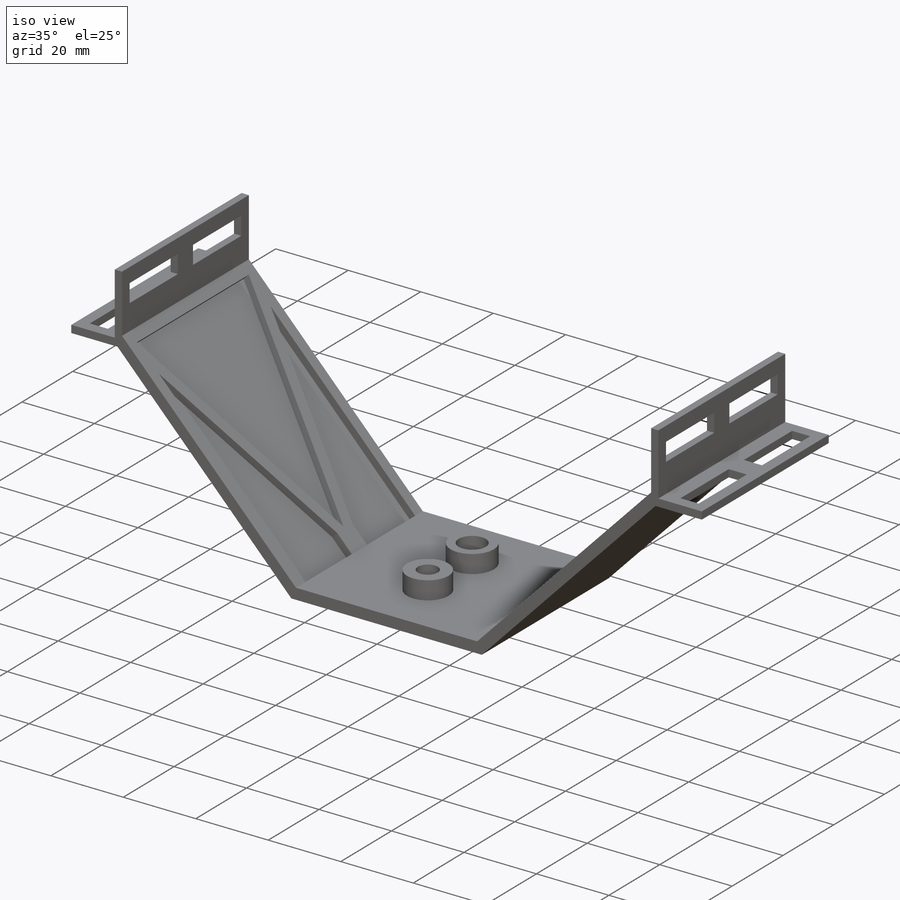
[diagram: iso view]
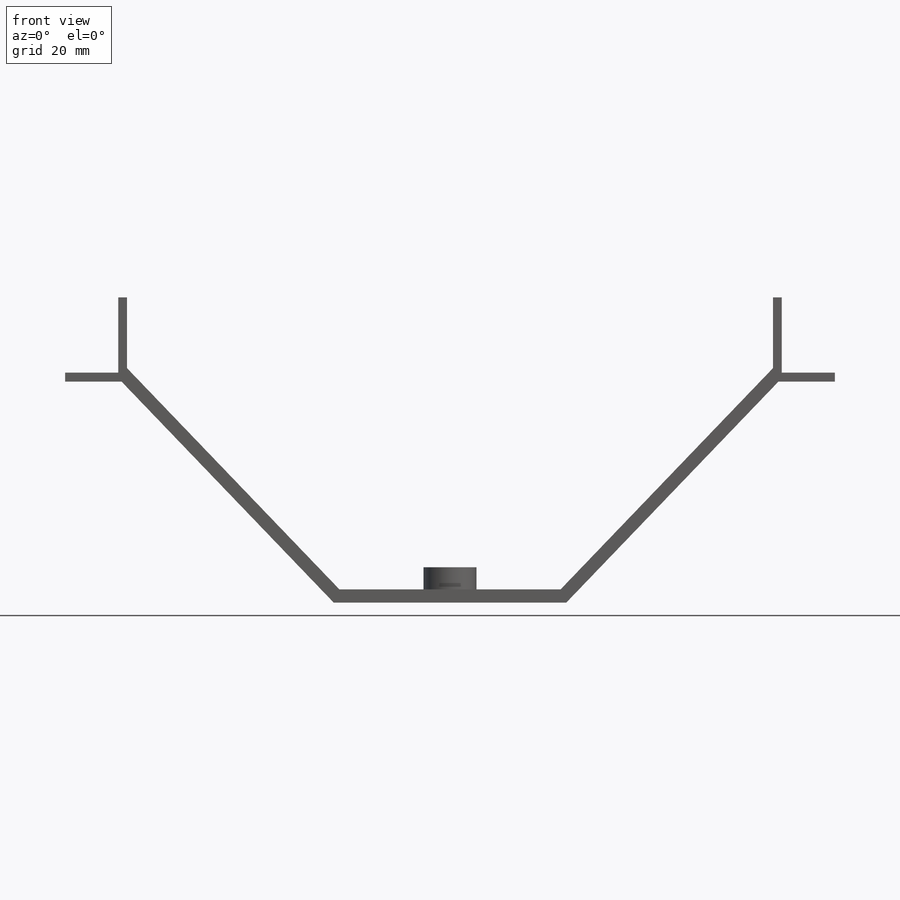
[diagram: front view]
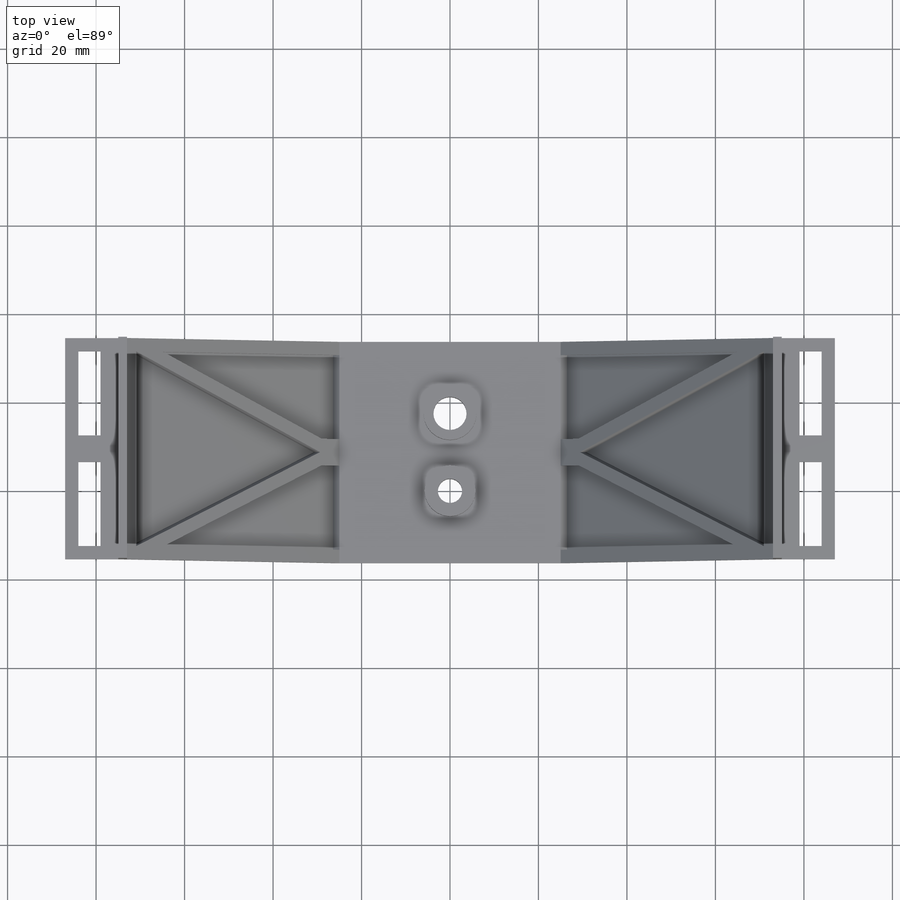
[diagram: top view]
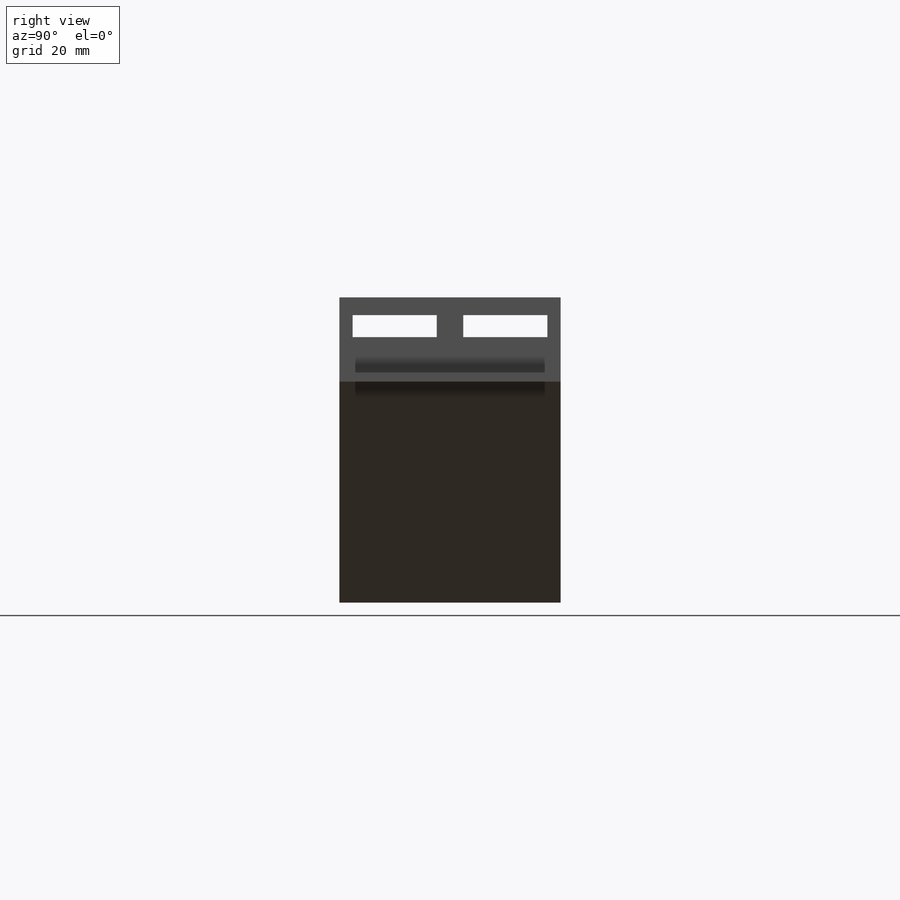
[diagram: right view]
SOLIDWORKS PART (.sldprt)
format: sldprt  version: not decoded by parser v0  size: 423,936 bytes
history: native  units: mm
features: sketch x12, extrude x7, cut_extrude x5, mirror x3, material x1, plane x1 (+13 scaffold rows collapsed)
feature tree (42):
  scaffold x13  (default folders/planes/origin — collapsed)
  material  "Material <not specified>"
  sketch  "Sketch1"  dims[D1=5.5mm D2=7.5mm D3=17.5mm D4=50.0mm D5=50.0mm D6=25.0mm D7=25.0mm]
  extrude  "Boss-Extrude1"  Depth=3mm
  sketch  "Sketch2"  dims[c1.D1=50.0mm c1.D2=2.0mm c1.D3=2.0mm c1.D4=10.0mm c1.D5=10.0mm c2.D1=~55.029284mm c3.D1=~0.444063deg c4.D1=3.0mm c4.D2=50.0mm]
  extrude  "Boss-Extrude2"  Depth=50mm
  sketch  "Sketch3"  dims[c1.D1=3.0mm c1.D2=3.0mm c1.D3=3.0mm c1.D4=3.0mm c1.D5=~50.55501mm c2.D5=~0.961881deg c3.D5=3.0mm c3.D6=60.0mm c3.D7=3.0mm c3.D8=3.0mm c3.D9=3.0mm]
  cut_extrude  "Cut-Extrude2"  Depth=2mm
  plane  "Plane1"  Offset=25mm
  mirror  "Mirror1"
  sketch  "Sketch10"
  extrude  "Boss-Extrude6"  Depth=2mm
  sketch  "Sketch11"  dims[c1.D1=5.0mm c1.D2=3.0mm c1.D3=3.0mm c1.D4=3.0mm c2.D2=3.0mm c2.D5=3.0mm]
  cut_extrude  "Cut-Extrude4"  Depth=4mm
  mirror  "Mirror2"
  sketch  "Sketch12"
  extrude  "Boss-Extrude7"  Depth=10mm
  sketch  "Sketch13"  dims[c1.D1=5.0mm c1.D2=5.0mm c1.D3=3.0mm c1.D4=3.0mm c1.D5=20.0mm c1.D6=20.0mm c2.D5=3.0mm c2.D6=3.0mm c2.D7=2.5mm c2.D8=2.5mm]
  cut_extrude  "Cut-Extrude5"  Depth=10mm
  mirror  "Mirror3"
  sketch  "Sketch14"  dims[c1.D1=~7.699888mm c1.D2=7.5mm c2.D1=2.0mm c2.D2=2.0mm]
  extrude  "Boss-Extrude8"  Depth=5mm
  sketch  "Sketch15"  dims[D1=3.0mm]
  cut_extrude  "Cut-Extrude6"  Depth=5mm
  sketch  "Sketch16"  dims[D1=5.5mm]
  extrude  "Boss-Extrude9"  [1 undecoded]
  sketch  "Sketch17"  dims[D1=7.5mm]
  cut_extrude  "Cut-Extrude7"  [1 undecoded]
  sketch  "Sketch18"  dims[D1=12.0mm]
  extrude  "Boss-Extrude10"  [1 undecoded]
decode coverage: 19 of 27 modeling features carry decoded parameters
note: ~ marks probable driven/reference dimensions
note: 3 parameter values undecoded
summary: no parameter record found for 3 features
note: suppression state not decoded; provenance and decode notes live in map.json
